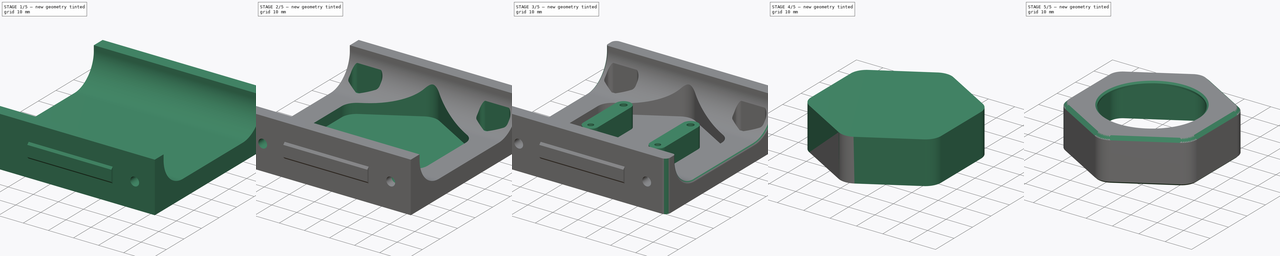
[diagram: build sequence overview — one tinted view per stage of 5, left to right]
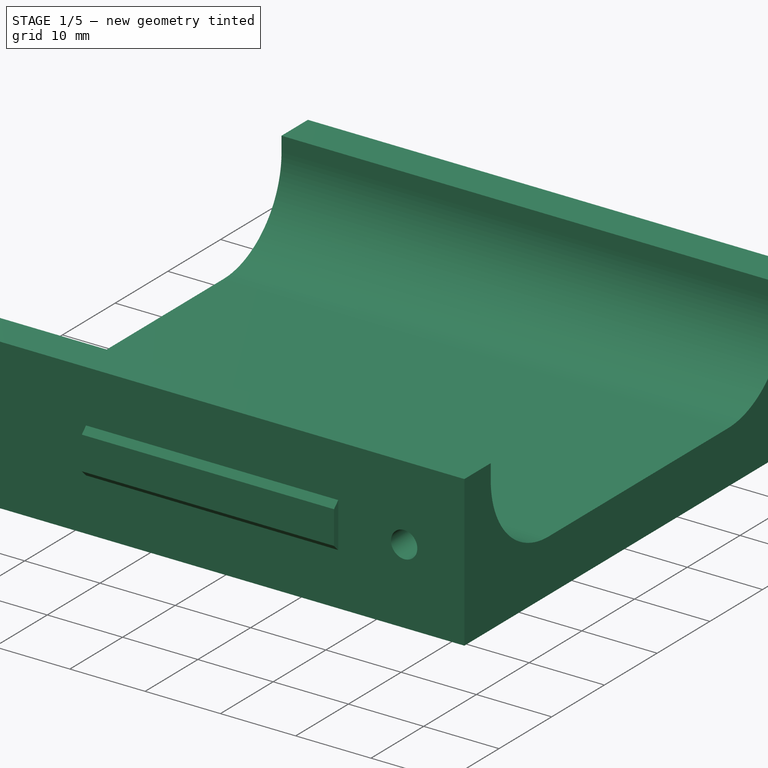
[diagram: stage 1 of 5 — iso view after this stage's code; geometry added in this stage tinted green]
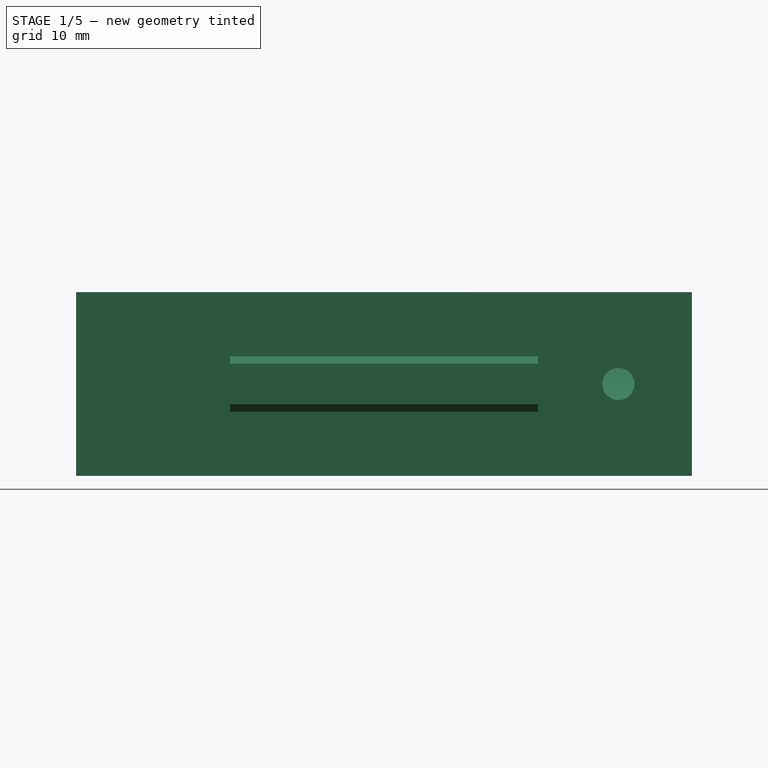
[diagram: stage 1 of 5 — front view after this stage's code; geometry added in this stage tinted green]
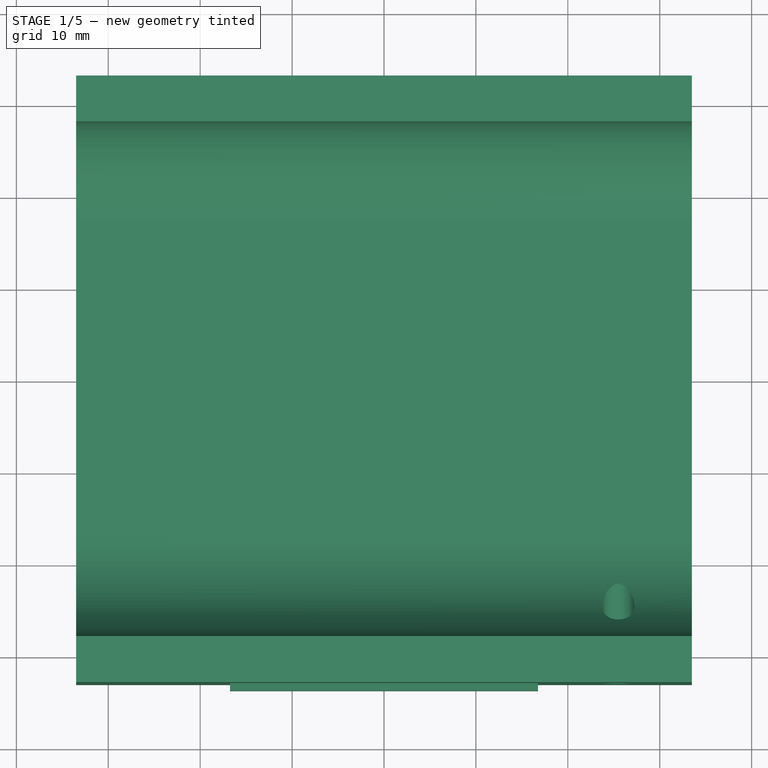
[diagram: stage 1 of 5 — top view after this stage's code; geometry added in this stage tinted green]
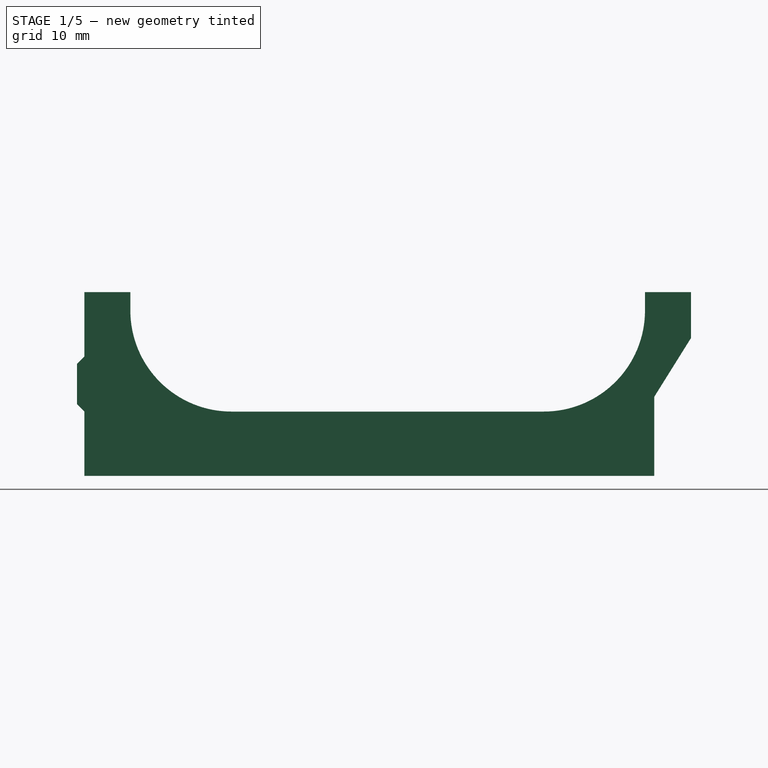
[diagram: stage 1 of 5 — right view after this stage's code; geometry added in this stage tinted green]
FCSTD DOCUMENT  (FreeCAD 0.20R29410 (Git))
Label: Cyclopse MK 1
License: Creative Commons Attribution-NonCommercial-ShareAlike
LicenseURL: http://creativecommons.org/licenses/by-nc-sa/4.0/
objects: Sketcher::SketchObject×14, PartDesign::Pocket×10, PartDesign::Mirrored×5, PartDesign::Pad×4, PartDesign::Chamfer×4, PartDesign::Fillet×3, Part::Feature×2, PartDesign::Body×2, PartDesign::MultiTransform×1, PartDesign::ShapeBinder×1, PartDesign::Thickness×1
note: 69 computed .brp shape members not serialized (recipe doc carries the construction recipe); baked Part::Feature solids carry a one-line shape summary decoded from their .brp

FEATURE [Part::Feature] Part__Feature  label="250 (2)"
  Placement = pos=(-75,85.75,-409.5) rot=(1,0,0;1.5708rad)
  shape: bbox 82 x 66.8 x 20 mm, 145 faces (baked)
FEATURE [Sketcher::SketchObject] Sketch
  FullyConstrained = true
  MapMode = 5
  Support = -> [XY_Plane]
  sketch-geometry (5):
    g0: LineSegment StartX=-33.5 StartY=-33 StartZ=0 EndX=-33.5 EndY=33 EndZ=0
    g1: LineSegment StartX=-33.5 StartY=33 StartZ=0 EndX=33.5 EndY=33 EndZ=0
    g2: LineSegment StartX=33.5 StartY=33 StartZ=0 EndX=33.5 EndY=-33 EndZ=0
    g3: LineSegment StartX=33.5 StartY=-33 StartZ=0 EndX=-33.5 EndY=-33 EndZ=0
    g4: GeomPoint X=0 Y=0 Z=0
  constraints (12):
    c: Coincident(g0,g1)
    c: Coincident(g1,g2)
    c: Coincident(g2,g3)
    c: Coincident(g3,g0)
    c: Horizontal(g1)
    c: Horizontal(g3)
    c: Vertical(g0)
    c: Vertical(g2)
    c: Symmetric(g1,g0,g4)
    c: Coincident(g4,g-1)
    c: DistanceX(g1,g1) = 67  'Width'
    c: DistanceY(g2,g2) = 66  'Height'
FEATURE [PartDesign::Pad] Pad
  Direction = (0,0,1)
  Length = 20
  Length2 = 10
  Profile = -> Sketch
  ReferenceAxis = -> Sketch [N_Axis]
  Reversed = true
  Type = 0
FEATURE [Sketcher::SketchObject] Sketch001
  FullyConstrained = true
  MapMode = 5
  Placement = pos=(0,0,0) rot=(0.57735,0.57735,0.57735;2.0944rad)
  Support = -> [YZ_Plane]
  expr: Constraints[21] = Sketch.Constraints.Height - 10mm
  sketch-geometry (10):
    g0: ArcOfCircle CenterX=-17 CenterY=-2 CenterZ=0 NormalX=0 NormalY=0 NormalZ=1 AngleXU=0 Radius=11 StartAngle=3.14159 EndAngle=4.71239
    g1: LineSegment StartX=-28 StartY=-2 StartZ=0 EndX=-28 EndY=2 EndZ=0
    g2: ArcOfCircle CenterX=-17 CenterY=2 CenterZ=0 NormalX=0 NormalY=0 NormalZ=1 AngleXU=0 Radius=11 StartAngle=1.5708 EndAngle=3.14159
    g3: LineSegment StartX=-17 StartY=13 StartZ=0 EndX=17 EndY=13 EndZ=0
    g4: ArcOfCircle CenterX=17 CenterY=2 CenterZ=0 NormalX=0 NormalY=0 NormalZ=1 AngleXU=0 Radius=11 StartAngle=1e-16 EndAngle=1.5708
    g5: LineSegment StartX=28 StartY=2 StartZ=0 EndX=28 EndY=-2 EndZ=0
    g6: ArcOfCircle CenterX=17 CenterY=-2 CenterZ=0 NormalX=0 NormalY=0 NormalZ=1 AngleXU=0 Radius=11 StartAngle=4.71239 EndAngle=6.28319
    g7: LineSegment StartX=17 StartY=-13 StartZ=0 EndX=-17 EndY=-13 EndZ=0
    g8: GeomPoint X=-28 Y=-13 Z=0
    g9: GeomPoint X=28 Y=13 Z=0
  constraints (23):
    c: Tangent(g0,g1) = 1.5708
    c: Tangent(g1,g2) = 1.5708
    c: Tangent(g2,g3) = 1.5708
    c: Tangent(g3,g4) = 1.5708
    c: Tangent(g4,g5) = 1.5708
    c: Tangent(g5,g6) = 1.5708
    c: Tangent(g6,g7) = 1.5708
    c: Tangent(g7,g0) = 1.5708
    c: Horizontal(g3)
    c: Horizontal(g7)
    c: Vertical(g1)
    c: Vertical(g5)
    c: Equal(g0,g2)
    c: Equal(g2,g4)
    c: Equal(g4,g6)
    c: PointOnObject(g8,g1)
    c: PointOnObject(g8,g7)
    c: PointOnObject(g9,g3)
    c: PointOnObject(g9,g5)
    c: Symmetric(g3,g0,g-1)
    c: Radius(g6) = 11
    c: DistanceX(g1,g4) = 56
    c: DistanceY(g6,g-1) = 13
FEATURE [PartDesign::Pocket] Pocket
  BaseFeature = -> Pad
  Direction = (-1,2e-16,-3e-16)
  Length = 67
  Length2 = 5
  Midplane = true
  Profile = -> Sketch001
  ReferenceAxis = -> Sketch001 [N_Axis]
  Type = 0
  expr: Length = Sketch.Constraints.Width
FEATURE [Sketcher::SketchObject] Sketch002
  FullyConstrained = true
  MapMode = 5
  Placement = pos=(0,0,0) rot=(0.57735,0.57735,0.57735;2.0944rad)
  Support = -> [YZ_Plane]
  expr: Constraints[8] = Sketch.Constraints.Height / 2
  expr: Constraints[9] = Pad.Length
  sketch-geometry (4):
    g0: LineSegment StartX=33 StartY=-20 StartZ=0 EndX=29 EndY=-20 EndZ=0
    g1: LineSegment StartX=29 StartY=-20 StartZ=0 EndX=29 EndY=-11.4 EndZ=0
    g2: LineSegment StartX=29 StartY=-11.4 StartZ=0 EndX=33 EndY=-5 EndZ=0
    g3: LineSegment StartX=33 StartY=-5 StartZ=0 EndX=33 EndY=-20 EndZ=0
  constraints (12):
    c: Horizontal(g0)
    c: Coincident(g0,g1)
    c: Vertical(g1)
    c: Coincident(g1,g2)
    c: Coincident(g2,g3)
    c: Coincident(g3,g0)
    c: Vertical(g3)
    c: DistanceX(g0,g0) = 4
    c: DistanceX(g-1,g0) = 33
    c: DistanceY(g0,g-1) = 20
    c: DistanceY(g3,g3) = 15
    c: DistanceY(g1,g1) = 8.6
FEATURE [PartDesign::Pocket] Pocket001
  BaseFeature = -> Pocket
  Direction = (-1,2e-16,-3e-16)
  Length = 67
  Length2 = 5
  Midplane = true
  Profile = -> Sketch002
  ReferenceAxis = -> Sketch002 [N_Axis]
  Type = 0
  expr: Length = Sketch.Constraints.Width
FEATURE [Sketcher::SketchObject] Sketch003
  FullyConstrained = true
  MapMode = 5
  Placement = pos=(0,0,0) rot=(0.57735,0.57735,0.57735;2.0944rad)
  Support = -> [YZ_Plane]
  expr: Constraints[6] = Sketch.Constraints.Height / 2
  sketch-geometry (5):
    g0: LineSegment StartX=-33 StartY=-7 StartZ=0 EndX=-33.8 EndY=-7.8 EndZ=0
    g1: LineSegment StartX=-33.8 StartY=-7.8 StartZ=0 EndX=-33.8 EndY=-12.2 EndZ=0
    g2: LineSegment StartX=-33.8 StartY=-12.2 StartZ=0 EndX=-33 EndY=-13 EndZ=0
    g3: LineSegment StartX=-33 StartY=-13 StartZ=0 EndX=-33 EndY=-7 EndZ=0
    g4: LineSegment StartX=-33.8 StartY=-10 StartZ=0 EndX=-33 EndY=-10 EndZ=0
  constraints (14):
    c: Coincident(g0,g1)
    c: Vertical(g1)
    c: Coincident(g1,g2)
    c: Coincident(g2,g3)
    c: Coincident(g3,g0)
    c: DistanceY(g0,g-1) = 7
    c: DistanceX(g0,g-1) = 33
    c: Vertical(g3)
    c: DistanceY(g3,g3) = 6
    c: DistanceY(g1,g1) = 4.4
    c: DistanceX(g1,g2) = 0.8
    c: Horizontal(g4)
    c: Symmetric(g1,g0,g4)
    c: Symmetric(g0,g2,g4)
FEATURE [PartDesign::Pad] Pad001
  BaseFeature = -> Pocket001
  Direction = (1,-2e-16,3e-16)
  Length = 33.5
  Length2 = 10
  Midplane = true
  Profile = -> Sketch003
  ReferenceAxis = -> Sketch003 [N_Axis]
  Type = 0
  expr: Length = Sketch.Constraints.Width / 2
FEATURE [Sketcher::SketchObject] Sketch004
  AttachmentOffset = pos=(0,0,33) rot=(0,0,1;0rad)
  FullyConstrained = true
  MapMode = 5
  Placement = pos=(0,-33,7.3e-15) rot=(1,0,0;1.5708rad)
  Support = -> [XZ_Plane]
  expr: .AttachmentOffset.Base.z = Sketch.Constraints.Height / 2
  expr: Constraints[0] = Pad.Length / 2
  expr: Constraints[1] = Sketch.Constraints.Width / 2 - 8mm
  sketch-geometry (1):
    g0: Circle CenterX=25.5 CenterY=-10 CenterZ=0 NormalX=0 NormalY=0 NormalZ=1 AngleXU=0 Radius=1.75
  constraints (3):
    c: DistanceY(g0,g-1) = 10
    c: DistanceX(g-1,g0) = 25.5
    c: Diameter(g0) = 3.5
FEATURE [PartDesign::Pocket] Pocket002
  BaseFeature = -> Pad001
  Direction = (0,1,-2e-16)
  Length = 16
  Length2 = 5
  Profile = -> Sketch004
  ReferenceAxis = -> Sketch004 [N_Axis]
  Type = 0
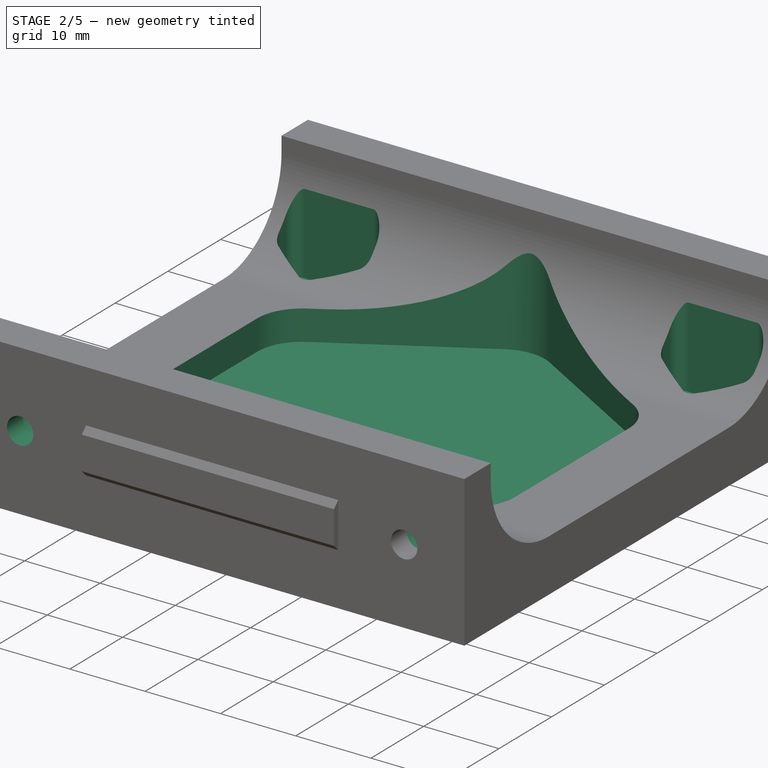
[diagram: stage 2 of 5 — iso view after this stage's code; geometry added in this stage tinted green]
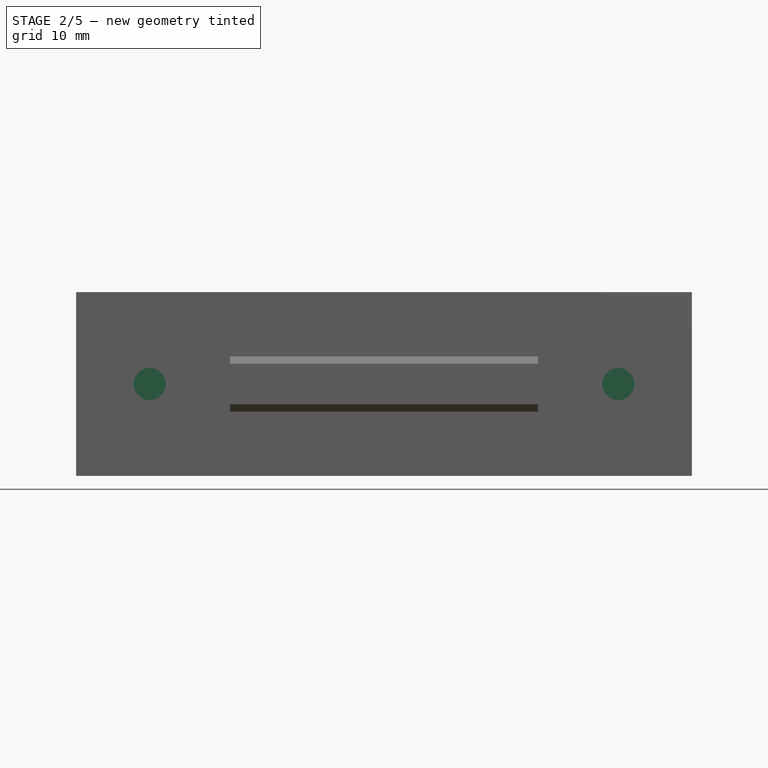
[diagram: stage 2 of 5 — front view after this stage's code; geometry added in this stage tinted green]
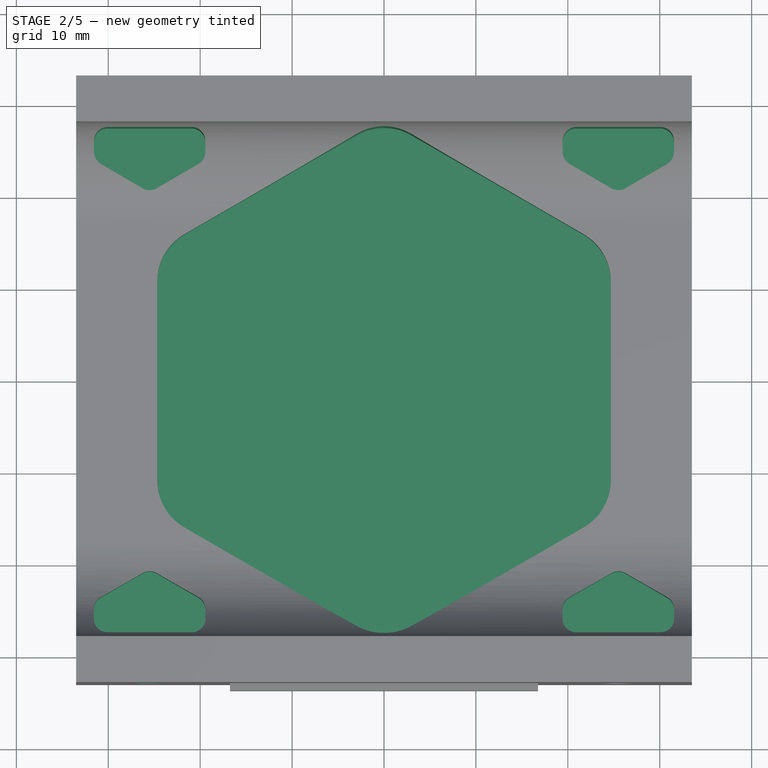
[diagram: stage 2 of 5 — top view after this stage's code; geometry added in this stage tinted green]
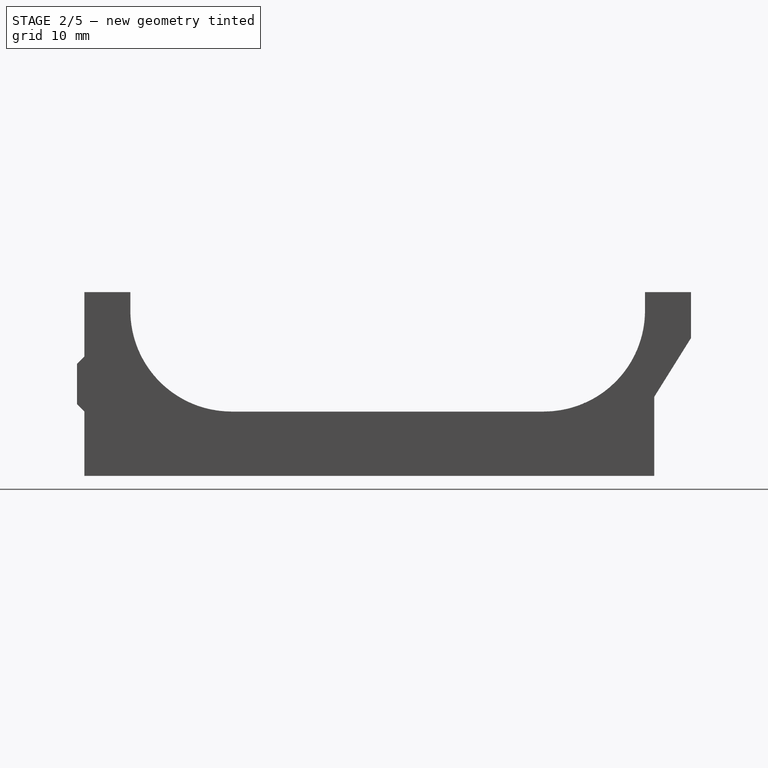
[diagram: stage 2 of 5 — right view after this stage's code; geometry added in this stage tinted green]
FEATURE [Sketcher::SketchObject] Sketch005
  AttachmentOffset = pos=(0,0,30) rot=(0,0,1;0rad)
  FullyConstrained = true
  MapMode = 5
  Placement = pos=(0,-30,6.7e-15) rot=(1,0,0;1.5708rad)
  Support = -> [XZ_Plane]
  expr: .AttachmentOffset.Base.z = Sketch.Constraints.Height / 2 - 3mm
  expr: Constraints[0] = Sketch004.Constraints[0]
  expr: Constraints[1] = Sketch004.Constraints[1]
  sketch-geometry (1):
    g0: Circle CenterX=25.5 CenterY=-10 CenterZ=0 NormalX=0 NormalY=0 NormalZ=1 AngleXU=0 Radius=3
  constraints (3):
    c: DistanceY(g0,g-1) = 10
    c: DistanceX(g-1,g0) = 25.5
    c: Diameter(g0) = 6
FEATURE [PartDesign::Pocket] Pocket003
  BaseFeature = -> Pocket002
  Direction = (0,1,-2e-16)
  Length = 8
  Length2 = 5
  Profile = -> Sketch005
  ReferenceAxis = -> Sketch005 [N_Axis]
  Type = 0
FEATURE [Part::Feature] Part__Feature001  label="0503"
  Placement = pos=(9e-16,0,-7.25) rot=(0.707107,0.707107,0;3.14159rad)
  shape: bbox 37.5 x 40.45 x 9.2 mm, 53 faces (baked)
FEATURE [Sketcher::SketchObject] Sketch006
  FullyConstrained = true
  MapMode = 5
  Support = -> [XY_Plane]
  expr: Constraints[17] = Sketch004.Constraints[1]
  expr: Constraints[40] = Sketch.Constraints.Height / 2 - 5.5mm
  sketch-geometry (24):
    g0: LineSegment StartX=25.5 StartY=-20.5 StartZ=0 EndX=19.4378 EndY=-24 EndZ=0
    g1: LineSegment StartX=19.4378 StartY=-24 StartZ=0 EndX=19.4378 EndY=-31 EndZ=0
    g2: LineSegment StartX=19.4378 StartY=-31 StartZ=0 EndX=25.5 EndY=-34.5 EndZ=0
    g3: LineSegment StartX=25.5 StartY=-34.5 StartZ=0 EndX=31.5622 EndY=-31 EndZ=0
    g4: LineSegment StartX=31.5622 StartY=-31 StartZ=0 EndX=31.5622 EndY=-24 EndZ=0
    g5: LineSegment StartX=31.5622 StartY=-24 StartZ=0 EndX=25.5 EndY=-20.5 EndZ=0
    g6: Circle CenterX=25.5 CenterY=-27.5 CenterZ=0 NormalX=0 NormalY=0 NormalZ=1 AngleXU=0 Radius=7
    g7: LineSegment StartX=24.2487 StartY=14 StartZ=0 EndX=-3.6e-15 EndY=28 EndZ=0
    g8: LineSegment StartX=-3.6e-15 StartY=28 StartZ=0 EndX=-24.2487 EndY=14 EndZ=0
    g9: LineSegment StartX=-24.2487 StartY=14 StartZ=0 EndX=-24.2487 EndY=-14 EndZ=0
    g10: LineSegment StartX=-24.2487 StartY=-14 StartZ=0 EndX=3.6e-15 EndY=-28 EndZ=0
    g11: LineSegment StartX=2.5e-15 StartY=-28 StartZ=0 EndX=24.2487 EndY=-14 EndZ=0
    g12: LineSegment StartX=24.2487 StartY=-14 StartZ=0 EndX=24.2487 EndY=14 EndZ=0
    g13: Circle CenterX=0 CenterY=0 CenterZ=0 NormalX=0 NormalY=0 NormalZ=1 AngleXU=0 Radius=28
    g14: LineSegment StartX=19.4378 StartY=-26 StartZ=0 EndX=19.4378 EndY=-24.866 EndZ=0
    g15: LineSegment StartX=20.1878 StartY=-23.567 StartZ=0 EndX=24.75 EndY=-20.933 EndZ=0
    g16: LineSegment StartX=26.25 StartY=-20.933 StartZ=0 EndX=30.8122 EndY=-23.567 EndZ=0
    g17: LineSegment StartX=30.0622 StartY=-27.5 StartZ=0 EndX=20.9378 EndY=-27.5 EndZ=0
    g18: LineSegment StartX=31.5622 StartY=-24.866 StartZ=0 EndX=31.5622 EndY=-26 EndZ=0
    g19: ArcOfCircle CenterX=20.9378 CenterY=-24.866 CenterZ=0 NormalX=0 NormalY=0 NormalZ=1 AngleXU=0 Radius=1.5 StartAngle=2.0944 EndAngle=3.14159
    g20: ArcOfCircle CenterX=25.5 CenterY=-22.2321 CenterZ=0 NormalX=0 NormalY=0 NormalZ=1 AngleXU=0 Radius=1.5 StartAngle=1.0472 EndAngle=2.0944
    g21: ArcOfCircle CenterX=30.0622 CenterY=-24.866 CenterZ=0 NormalX=0 NormalY=0 NormalZ=1 AngleXU=0 Radius=1.5 StartAngle=7e-16 EndAngle=1.0472
    g22: ArcOfCircle CenterX=20.9378 CenterY=-26 CenterZ=0 NormalX=0 NormalY=0 NormalZ=1 AngleXU=0 Radius=1.5 StartAngle=3.14159 EndAngle=4.71239
    g23: ArcOfCircle CenterX=30.0622 CenterY=-26 CenterZ=0 NormalX=0 NormalY=0 NormalZ=1 AngleXU=0 Radius=1.5 StartAngle=4.71239 EndAngle=6.28319
  constraints (58):
    c: Coincident(g0,g1)
    c: Coincident(g1,g2)
    c: Coincident(g2,g3)
    c: Coincident(g3,g4)
    c: Coincident(g4,g5)
    c: Coincident(g5,g0)
    c: Equal(g0, g1-g5) x5
    c: PointOnObject(g0,g6)
    c: PointOnObject(g1,g6)
    c: PointOnObject(g2,g6)
    c: PointOnObject(g3,g6)
    c: PointOnObject(g4,g6)
    c: PointOnObject(g5,g6)
    c: DistanceX(g-1,g6) = 25.5
    c: Diameter(g6) = 14
    c: Vertical(g4)
    c: Coincident(g7,g8)
    c: Coincident(g8,g9)
    c: Coincident(g9,g10)
    c: Coincident(g10,g11)
    c: Coincident(g11,g12)
    c: Coincident(g12,g7)
    c: Equal(g7, g8-g12) x5
    c: PointOnObject(g7,g13)
    c: PointOnObject(g8,g13)
    c: PointOnObject(g9,g13)
    c: PointOnObject(g10,g13)
    c: PointOnObject(g11,g13)
    c: PointOnObject(g12,g13)
    c: Coincident(g13,g-1)
    c: Vertical(g12)
    c: Diameter(g13) = 56
    c: DistanceY(g6,g13) = 27.5
    c: Horizontal(g17)
    c: Tangent(g14,g19) = 1.5708
    c: Tangent(g15,g19) = 1.5708
    c: Tangent(g15,g20) = 1.5708
    c: Tangent(g16,g20) = 1.5708
    c: Tangent(g16,g21) = 1.5708
    c: Tangent(g18,g21) = 1.5708
    c: Tangent(g14,g22) = 1.5708
    c: Tangent(g17,g22) = 1.5708
    c: Tangent(g17,g23) = 1.5708
    c: Tangent(g18,g23) = 1.5708
    c: Diameter(g23) = 3
    c: PointOnObject(g14,g1)
    c: PointOnObject(g14,g1)
    c: PointOnObject(g15,g0)
    c: PointOnObject(g18,g4)
    c: PointOnObject(g18,g4)
    c: PointOnObject(g16,g5)
    c: PointOnObject(g16,g5)
    c: PointOnObject(g15,g0)
    c: Diameter(g21) = 3
    c: Diameter(g20) = 3
    c: Diameter(g19) = 3
    c: Diameter(g22) = 3
    c: PointOnObject(g6,g17)
FEATURE [PartDesign::Pocket] Pocket004
  BaseFeature = -> Pocket003
  Direction = (0,0,-1)
  Length = 16
  Length2 = 5
  Profile = -> Sketch006
  ReferenceAxis = -> Sketch006 [N_Axis]
  Type = 0
FEATURE [PartDesign::Mirrored] Mirrored
  BaseFeature = -> Pocket004
  MirrorPlane = -> YZ_Plane
  Originals = -> [Pocket002,Pocket003]
FEATURE [PartDesign::Mirrored] Mirrored001
  MirrorPlane = -> Sketch006 [V_Axis]
FEATURE [PartDesign::Mirrored] Mirrored002
  MirrorPlane = -> Sketch006 [H_Axis]
FEATURE [PartDesign::MultiTransform] MultiTransform
  BaseFeature = -> Mirrored
  Originals = -> [Pocket004]
  Transformations = -> [Mirrored001,Mirrored002]
FEATURE [Sketcher::SketchObject] Sketch007
  FullyConstrained = true
  MapMode = 5
  Support = -> [XY_Plane]
  sketch-geometry (19):
    g0: LineSegment StartX=0 StartY=28.5 StartZ=0 EndX=-24.6817 EndY=14.25 EndZ=0
    g1: LineSegment StartX=-24.6817 StartY=14.25 StartZ=0 EndX=-24.6817 EndY=-14.25 EndZ=0
    g2: LineSegment StartX=-24.6817 StartY=-14.25 StartZ=0 EndX=-1.8261e-12 EndY=-28.5 EndZ=0
    g3: LineSegment StartX=-1.8261e-12 StartY=-28.5 StartZ=0 EndX=24.6817 EndY=-14.25 EndZ=0
    g4: LineSegment StartX=24.6817 StartY=-14.25 StartZ=0 EndX=24.6817 EndY=14.25 EndZ=0
    g5: LineSegment StartX=24.6817 StartY=14.25 StartZ=0 EndX=0 EndY=28.5 EndZ=0
    g6: Circle CenterX=0 CenterY=-1e-16 CenterZ=0 NormalX=0 NormalY=0 NormalZ=1 AngleXU=0 Radius=28.5
    g7: LineSegment StartX=-21.6817 StartY=15.9821 StartZ=0 EndX=-3 EndY=26.7679 EndZ=0
    g8: LineSegment StartX=3 StartY=26.7679 StartZ=0 EndX=21.6817 EndY=15.9821 EndZ=0
    g9: LineSegment StartX=24.6817 StartY=10.7859 StartZ=0 EndX=24.6817 EndY=-10.7859 EndZ=0
    g10: LineSegment StartX=21.6817 StartY=-15.9821 StartZ=0 EndX=3 EndY=-26.7679 EndZ=0
    g11: LineSegment StartX=-3 StartY=-26.7679 StartZ=0 EndX=-21.6817 EndY=-15.9821 EndZ=0
    g12: LineSegment StartX=-24.6817 StartY=-10.7859 StartZ=0 EndX=-24.6817 EndY=10.7859 EndZ=0
    g13: ArcOfCircle CenterX=-1.6588e-12 CenterY=21.5718 CenterZ=0 NormalX=0 NormalY=0 NormalZ=1 AngleXU=0 Radius=6 StartAngle=1.0472 EndAngle=2.0944
    g14: ArcOfCircle CenterX=18.6817 CenterY=10.7859 CenterZ=0 NormalX=0 NormalY=0 NormalZ=1 AngleXU=0 Radius=6 StartAngle=-5.151e-13 EndAngle=1.0472
    g15: ArcOfCircle CenterX=18.6817 CenterY=-10.7859 CenterZ=0 NormalX=0 NormalY=0 NormalZ=1 AngleXU=0 Radius=6 StartAngle=5.23599 EndAngle=6.28319
    g16: ArcOfCircle CenterX=-1.3377e-12 CenterY=-21.5718 CenterZ=0 NormalX=0 NormalY=0 NormalZ=1 AngleXU=0 Radius=6 StartAngle=4.18879 EndAngle=5.23599
    g17: ArcOfCircle CenterX=-18.6817 CenterY=-10.7859 CenterZ=0 NormalX=0 NormalY=0 NormalZ=1 AngleXU=0 Radius=6 StartAngle=3.14159 EndAngle=4.18879
    g18: ArcOfCircle CenterX=-18.6817 CenterY=10.7859 CenterZ=0 NormalX=0 NormalY=0 NormalZ=1 AngleXU=0 Radius=6 StartAngle=2.0944 EndAngle=3.14159
  constraints (46):
    c: Coincident(g0,g1)
    c: Coincident(g1,g2)
    c: Coincident(g2,g3)
    c: Coincident(g3,g4)
    c: Coincident(g4,g5)
    c: Coincident(g5,g0)
    c: Equal(g0, g1-g5) x5
    c: PointOnObject(g0,g6)
    c: PointOnObject(g1,g6)
    c: PointOnObject(g2,g6)
    c: PointOnObject(g3,g6)
    c: PointOnObject(g4,g6)
    c: PointOnObject(g5,g6)
    c: Coincident(g6,g-1)
    c: PointOnObject(g5,g-2)
    c: Diameter(g6) = 57
    c: Tangent(g7,g13) = 1.5708
    c: Tangent(g8,g13) = 1.5708
    c: Tangent(g8,g14) = 1.5708
    c: Tangent(g9,g14) = 1.5708
    c: Tangent(g9,g15) = 1.5708
    c: Tangent(g10,g15) = 1.5708
    c: Tangent(g10,g16) = 1.5708
    c: Tangent(g11,g16) = 1.5708
    c: Tangent(g11,g17) = 1.5708
    c: Tangent(g12,g17) = 1.5708
    c: Tangent(g12,g18) = 1.5708
    c: Tangent(g7,g18) = 1.5708
    c: PointOnObject(g7,g0)
    c: PointOnObject(g7,g0)
    c: PointOnObject(g8,g5)
    c: PointOnObject(g8,g5)
    c: PointOnObject(g9,g4)
    c: PointOnObject(g9,g4)
    c: PointOnObject(g10,g3)
    c: PointOnObject(g10,g3)
    c: PointOnObject(g11,g2)
    c: PointOnObject(g11,g2)
    c: PointOnObject(g12,g1)
    c: PointOnObject(g12,g1)
    c: Radius(g13) = 6
    c: Radius(g14) = 6
    c: Radius(g15) = 6  'HexRad'
    c: Radius(g16) = 6
    c: Radius(g17) = 6
    c: Radius(g18) = 6
FEATURE [PartDesign::Pocket] Pocket005
  BaseFeature = -> MultiTransform
  Direction = (0,0,-1)
  Length = 17
  Length2 = 5
  Profile = -> Sketch007
  ReferenceAxis = -> Sketch007 [N_Axis]
  Type = 0
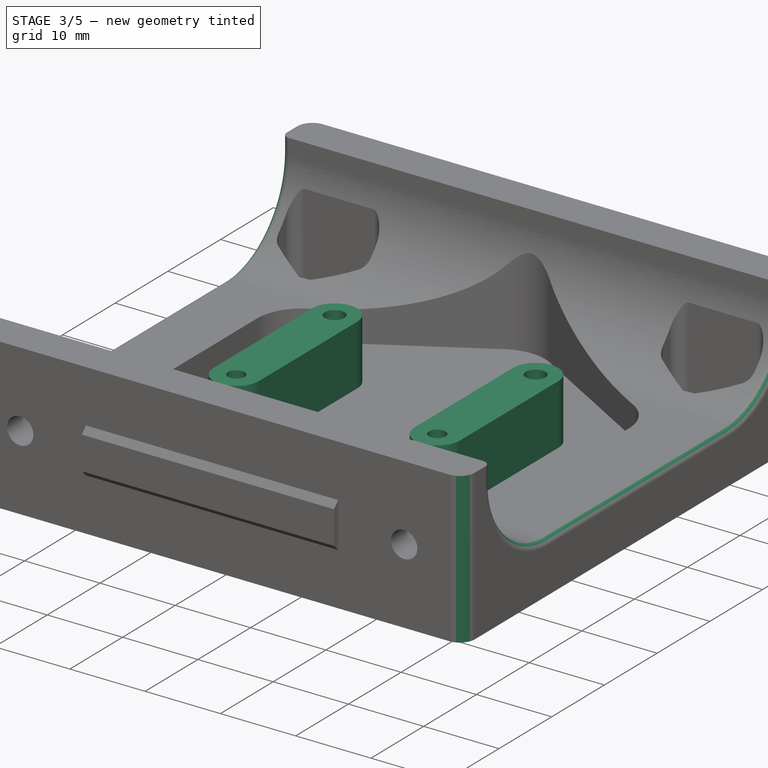
[diagram: stage 3 of 5 — iso view after this stage's code; geometry added in this stage tinted green]
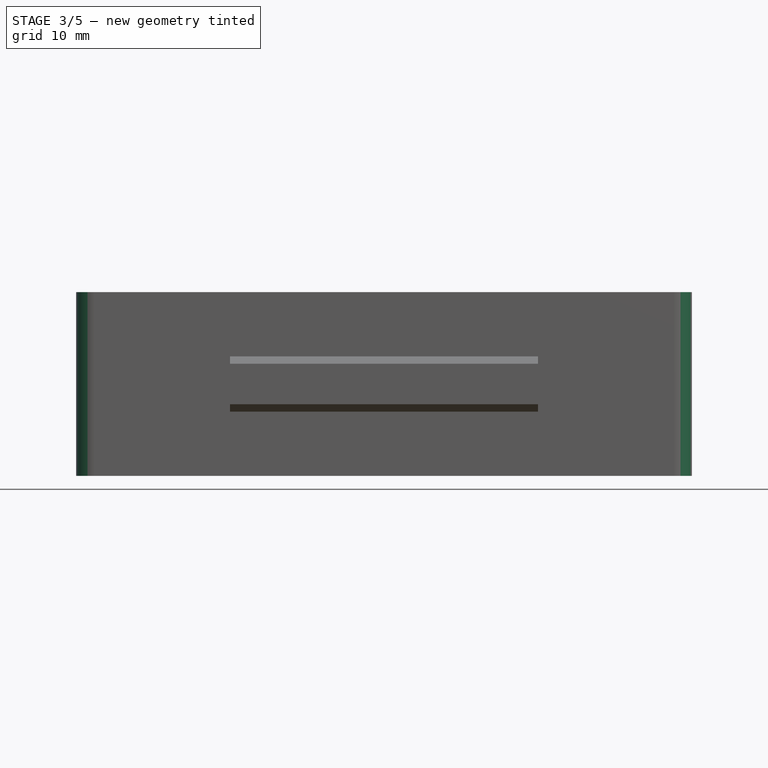
[diagram: stage 3 of 5 — front view after this stage's code; geometry added in this stage tinted green]
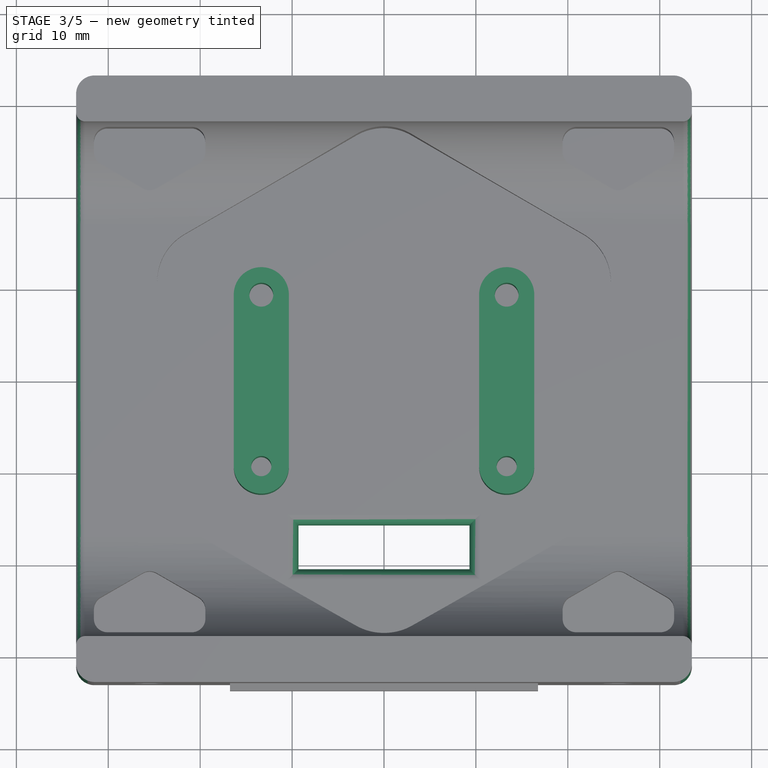
[diagram: stage 3 of 5 — top view after this stage's code; geometry added in this stage tinted green]
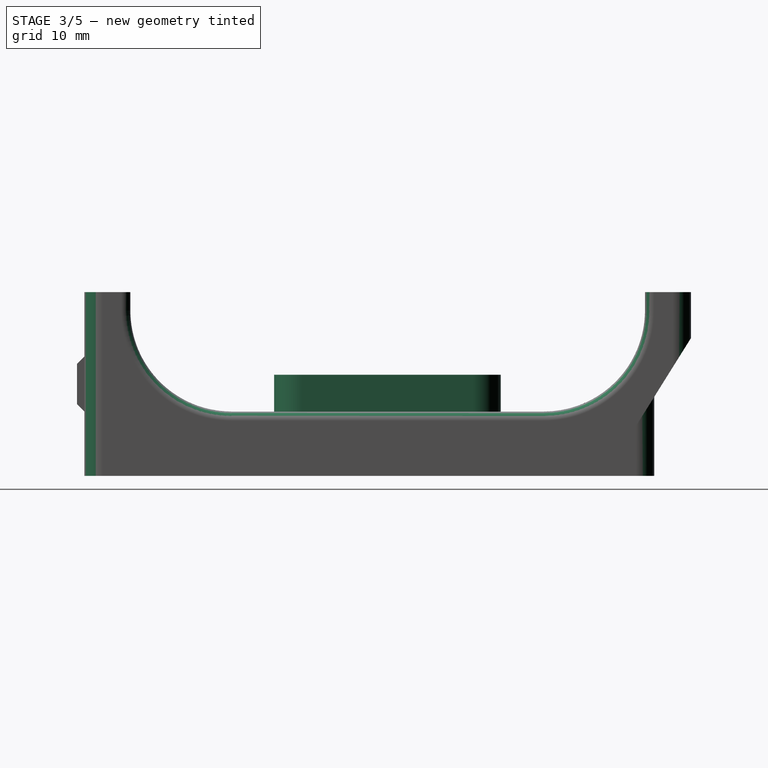
[diagram: stage 3 of 5 — right view after this stage's code; geometry added in this stage tinted green]
FEATURE [Sketcher::SketchObject] Sketch008
  AttachmentOffset = pos=(0,0,-17) rot=(0,0,1;0rad)
  FullyConstrained = true
  MapMode = 5
  Placement = pos=(0,0,-17) rot=(0,0,1;0rad)
  Support = -> [XY_Plane]
  sketch-geometry (6):
    g0: ArcOfCircle CenterX=13.35 CenterY=9.3 CenterZ=0 NormalX=0 NormalY=0 NormalZ=1 AngleXU=0 Radius=3 StartAngle=0 EndAngle=3.14159
    g1: ArcOfCircle CenterX=13.35 CenterY=-9.35 CenterZ=0 NormalX=0 NormalY=0 NormalZ=1 AngleXU=0 Radius=3 StartAngle=3.14159 EndAngle=6.28319
    g2: LineSegment StartX=10.35 StartY=9.3 StartZ=0 EndX=10.35 EndY=-9.35 EndZ=0
    g3: LineSegment StartX=16.35 StartY=-9.35 StartZ=0 EndX=16.35 EndY=9.3 EndZ=0
    g4: Circle CenterX=13.35 CenterY=9.3 CenterZ=0 NormalX=0 NormalY=0 NormalZ=1 AngleXU=0 Radius=1.3
    g5: Circle CenterX=13.35 CenterY=-9.35 CenterZ=0 NormalX=0 NormalY=0 NormalZ=1 AngleXU=0 Radius=1.1
  constraints (14):
    c: Tangent(g0,g2) = -1.5708
    c: Tangent(g2,g1) = -1.5708
    c: Tangent(g1,g3) = -1.5708
    c: Tangent(g3,g0) = -1.5708
    c: Equal(g0,g1)
    c: Vertical(g2)
    c: Radius(g0) = 3
    c: DistanceX(g0) = 13.35  'lcdBoltX'
    c: DistanceY(g0) = 9.3  'lcdBoltY1'
    c: DistanceY(g1) = -9.35  'lcdBoltY2'
    c: Coincident(g4,g0)
    c: Diameter(g4) = 2.6
    c: Coincident(g5,g1)
    c: Diameter(g5) = 2.2
FEATURE [PartDesign::Pad] Pad002
  BaseFeature = -> Pocket005
  Direction = (0,0,1)
  Length = 8
  Length2 = 10
  Profile = -> Sketch008
  ReferenceAxis = -> Sketch008 [N_Axis]
  Type = 0
FEATURE [PartDesign::Mirrored] Mirrored003
  BaseFeature = -> Pad002
  MirrorPlane = -> Sketch008 [V_Axis]
  Originals = -> [Pad002]
FEATURE [Sketcher::SketchObject] Sketch009
  FullyConstrained = false
  MapMode = 5
  Support = -> [XY_Plane]
  sketch-geometry (5):
    g0: LineSegment StartX=9.3 StartY=-15.6178 StartZ=0 EndX=9.3 EndY=-20.4178 EndZ=0
    g1: LineSegment StartX=9.3 StartY=-20.4178 StartZ=0 EndX=-9.3 EndY=-20.4178 EndZ=0
    g2: LineSegment StartX=-9.3 StartY=-20.4178 StartZ=0 EndX=-9.3 EndY=-15.6178 EndZ=0
    g3: LineSegment StartX=-9.3 StartY=-15.6178 StartZ=0 EndX=9.3 EndY=-15.6178 EndZ=0
    g4: GeomPoint X=0 Y=-18.0178 Z=0
  constraints (12):
    c: Coincident(g0,g1)
    c: Coincident(g1,g2)
    c: Coincident(g2,g3)
    c: Coincident(g3,g0)
    c: Horizontal(g1)
    c: Horizontal(g3)
    c: Vertical(g0)
    c: Vertical(g2)
    c: Symmetric(g1,g0,g4)
    c: PointOnObject(g4,g-2)
    c: DistanceX(g1,g1) = 18.6
    c: DistanceY(g2,g2) = 4.8
FEATURE [PartDesign::Pocket] Pocket006
  BaseFeature = -> Mirrored003
  Direction = (0,0,-1)
  Length = 20
  Length2 = 5
  Profile = -> Sketch009
  ReferenceAxis = -> Sketch009 [N_Axis]
  Type = 0
  expr: Length = Pad.Length
FEATURE [PartDesign::Fillet] Fillet
  Base = -> Pocket006 [Edge99,Edge4]
  BaseFeature = -> Pocket006
  Radius = 1
  SupportTransform = false
  UseAllEdges = false
FEATURE [PartDesign::Fillet] Fillet001
  Base = -> Fillet [Edge7,Edge39,Edge20,Edge3,Edge47,Edge11]
  BaseFeature = -> Fillet
  Radius = 2
  SupportTransform = false
  UseAllEdges = false
FEATURE [PartDesign::Fillet] Fillet002
  Base = -> Fillet001 [Edge78,Edge83,Edge85,Edge81]
  BaseFeature = -> Fillet001
  Radius = 1.2
  SupportTransform = false
  UseAllEdges = false
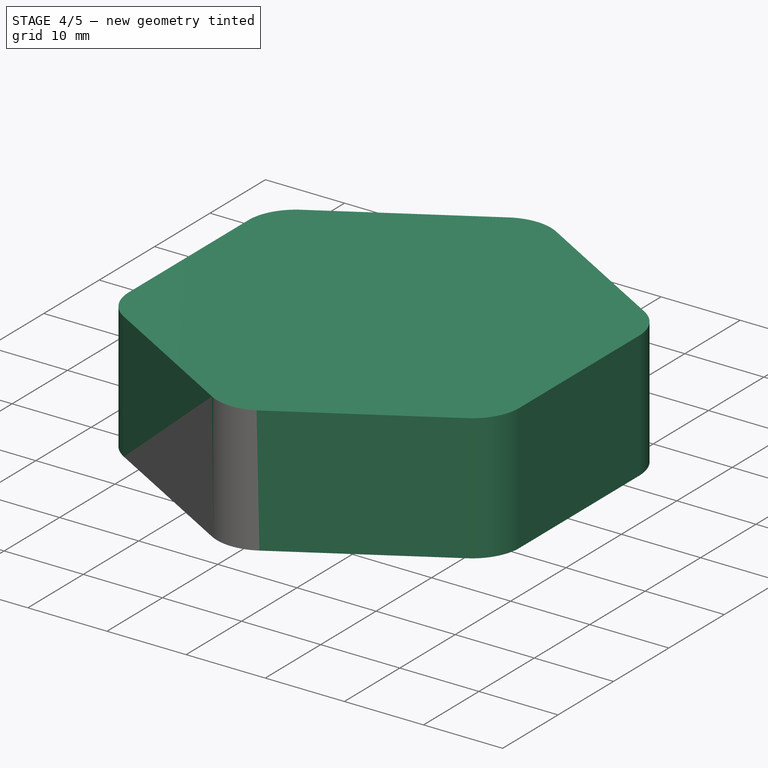
[diagram: stage 4 of 5 — iso view after this stage's code; geometry added in this stage tinted green]
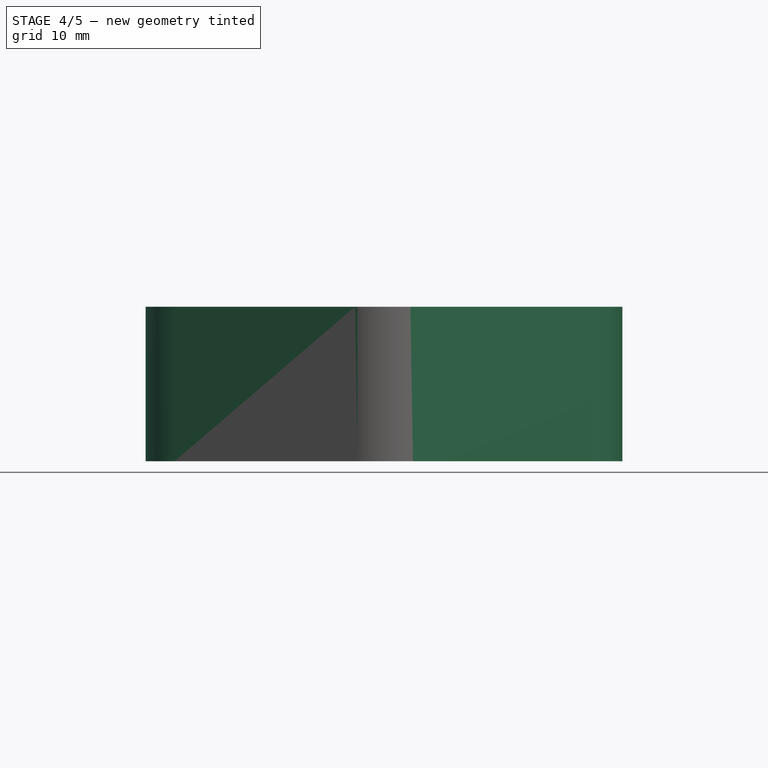
[diagram: stage 4 of 5 — front view after this stage's code; geometry added in this stage tinted green]
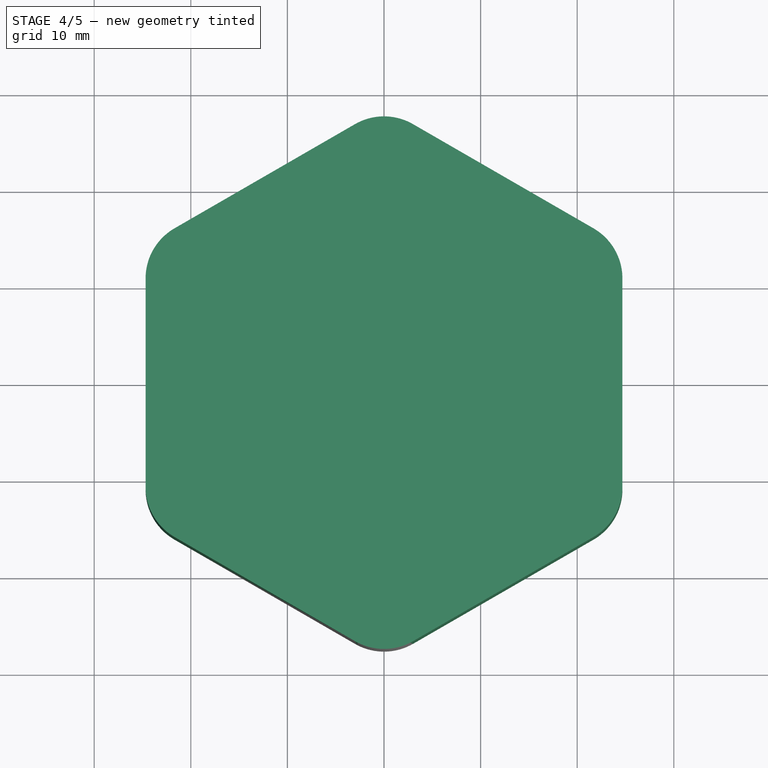
[diagram: stage 4 of 5 — top view after this stage's code; geometry added in this stage tinted green]
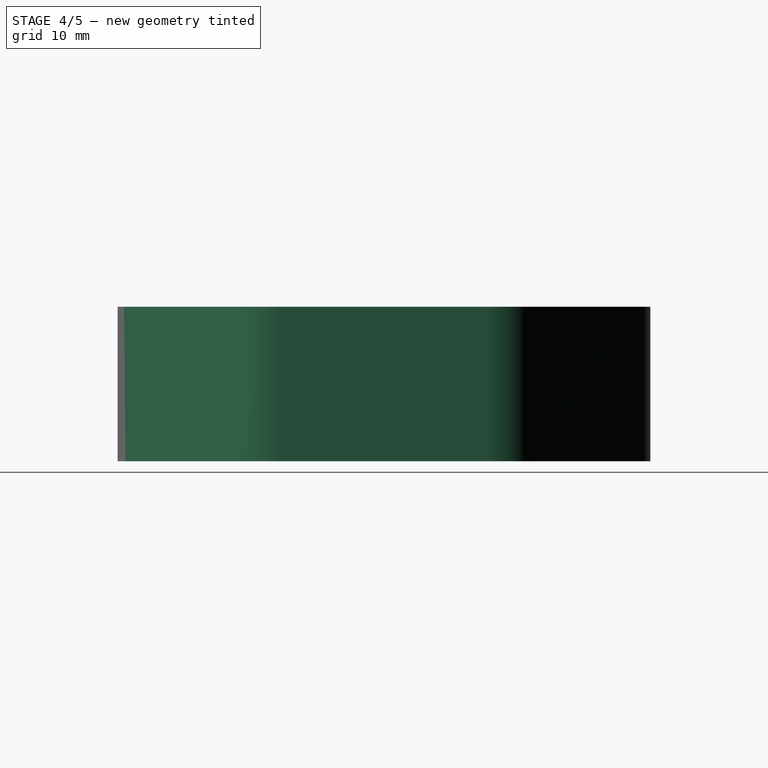
[diagram: stage 4 of 5 — right view after this stage's code; geometry added in this stage tinted green]
FEATURE [PartDesign::Chamfer] Chamfer
  Angle = 45
  Base = -> Fillet002 [Edge41,Edge47]
  BaseFeature = -> Fillet002
  ChamferType = 0
  FlipDirection = false
  Size = 1.2
  Size2 = 1
  SupportTransform = false
  UseAllEdges = false
FEATURE [Sketcher::SketchObject] Sketch010
  AttachmentOffset = pos=(0,0,-20) rot=(0,0,1;0rad)
  FullyConstrained = true
  MapMode = 5
  Placement = pos=(0,0,-20) rot=(0,0,1;0rad)
  Support = -> [XY_Plane]
  expr: .AttachmentOffset.Base.z = Pad.Length * -1
  expr: Constraints[0] = Sketch008.Constraints.lcdBoltX
  expr: Constraints[1] = Sketch008.Constraints.lcdBoltX
  expr: Constraints[2] = abs(Sketch008.Constraints.lcdBoltY2)
  expr: Constraints[3] = Sketch008.Constraints.lcdBoltY1
  sketch-geometry (2):
    g0: Circle CenterX=13.35 CenterY=9.3 CenterZ=0 NormalX=0 NormalY=0 NormalZ=1 AngleXU=0 Radius=2.2
    g1: Circle CenterX=13.35 CenterY=-9.35 CenterZ=0 NormalX=0 NormalY=0 NormalZ=1 AngleXU=0 Radius=2.2
  constraints (6):
    c: DistanceX(g-1,g0) = 13.35
    c: DistanceX(g-1,g1) = 13.35
    c: DistanceY(g1,g-1) = 9.35
    c: DistanceY(g-1,g0) = 9.3
    c: Diameter(g1) = 4.4
    c: Equal(g1,g0)
FEATURE [PartDesign::Pocket] Pocket007
  BaseFeature = -> Chamfer
  Direction = (0,0,-1)
  Length = 3
  Length2 = 5
  Profile = -> Sketch010
  ReferenceAxis = -> Sketch010 [N_Axis]
  Reversed = true
  Type = 0
FEATURE [Sketcher::SketchObject] Sketch011
  AttachmentOffset = pos=(0,0,-17) rot=(0,0,1;0rad)
  FullyConstrained = true
  MapMode = 5
  Placement = pos=(0,0,-17) rot=(0,0,1;0rad)
  Support = -> [XY_Plane]
  expr: .AttachmentOffset.Base.z = (Pad.Length - Pocket007.Length) * -1
  expr: Constraints[0] = Sketch010.Constraints[0]
  expr: Constraints[1] = Sketch010.Constraints[1]
  expr: Constraints[2] = Sketch010.Constraints[2]
  expr: Constraints[3] = Sketch010.Constraints[3]
  expr: Constraints[4] = Sketch010.Constraints[4]
  sketch-geometry (10):
    g0: ArcOfCircle CenterX=13.35 CenterY=9.3 CenterZ=0 NormalX=0 NormalY=0 NormalZ=1 AngleXU=0 Radius=2.2 StartAngle=1.0472 EndAngle=2.0944
    g1: ArcOfCircle CenterX=13.35 CenterY=-9.35 CenterZ=0 NormalX=0 NormalY=0 NormalZ=1 AngleXU=0 Radius=2.2 StartAngle=1.0472 EndAngle=2.0944
    g2: Circle CenterX=13.35 CenterY=-9.35 CenterZ=0 NormalX=0 NormalY=0 NormalZ=1 AngleXU=0 Radius=1.1
    g3: LineSegment StartX=12.25 StartY=-11.2553 StartZ=0 EndX=12.25 EndY=-7.44474 EndZ=0
    g4: LineSegment StartX=14.45 StartY=-11.2553 StartZ=0 EndX=14.45 EndY=-7.44474 EndZ=0
    g5: ArcOfCircle CenterX=13.35 CenterY=-9.35 CenterZ=0 NormalX=0 NormalY=0 NormalZ=1 AngleXU=0 Radius=2.2 StartAngle=4.18879 EndAngle=5.23599
    g6: Circle CenterX=13.35 CenterY=9.3 CenterZ=0 NormalX=0 NormalY=0 NormalZ=1 AngleXU=0 Radius=1.1
    g7: LineSegment StartX=12.25 StartY=11.2053 StartZ=0 EndX=12.25 EndY=7.39474 EndZ=0
    g8: LineSegment StartX=14.45 StartY=11.2053 StartZ=0 EndX=14.45 EndY=7.39474 EndZ=0
    g9: ArcOfCircle CenterX=13.35 CenterY=9.3 CenterZ=0 NormalX=0 NormalY=0 NormalZ=1 AngleXU=0 Radius=2.2 StartAngle=4.18879 EndAngle=5.23599
  constraints (30):
    c: DistanceX(g-1,g0) = 13.35
    c: DistanceX(g-1,g1) = 13.35
    c: DistanceY(g1,g-1) = 9.35
    c: DistanceY(g-1,g0) = 9.3
    c: Diameter(g1) = 4.4
    c: Equal(g1,g0)
    c: Coincident(g2,g1)
    c: Diameter(g2) = 2.2
    c: Vertical(g3)
    c: Vertical(g4)
    c: Tangent(g2,g4)
    c: Tangent(g3,g2)
    c: Coincident(g5,g4)
    c: Coincident(g1,g4)
    c: Equal(g1,g5)
    c: Coincident(g1,g3)
    c: Coincident(g5,g3)
    c: Coincident(g1,g5)
    c: Coincident(g6,g0)
    c: Diameter(g6) = 2.2
    c: Vertical(g7)
    c: Vertical(g8)
    c: Tangent(g8,g6)
    c: Tangent(g7,g6)
    c: Coincident(g9,g8)
    c: Coincident(g0,g8)
    c: Equal(g0,g9)
    c: Coincident(g0,g7)
    c: Coincident(g9,g7)
    c: Coincident(g0,g9)
FEATURE [PartDesign::Pocket] Pocket008
  BaseFeature = -> Pocket007
  Direction = (0,0,-1)
  Length = 0.2
  Length2 = 5
  Profile = -> Sketch011
  ReferenceAxis = -> Sketch011 [N_Axis]
  Reversed = true
  Type = 0
FEATURE [PartDesign::Mirrored] Mirrored004
  BaseFeature = -> Pocket008
  MirrorPlane = -> Sketch010 [V_Axis]
  Originals = -> [Pocket007,Pocket008]
FEATURE [PartDesign::Body] Body
  Group = -> [Sketch,Pad,Sketch001,Pocket,Sketch002,Pocket001,Sketch003,Pad001,Sketch004,Pocket002,Sketch005,Pocket003,Sketch006,Pocket004,Mirrored,MultiTransform,Mirrored001,Mirrored002,Sketch007,Pocket005,Sketch008,Pad002,Mirrored003,Sketch009,Pocket006,Fillet,Fillet001,Fillet002,Chamfer,Sketch010,Pocket007,Sketch011,Pocket008,Mirrored004]
  Origin = -> Origin
  Tip = -> Mirrored004
FEATURE [PartDesign::ShapeBinder] ShapeBinder
  Support = -> [Mirrored004]
  TraceSupport = false
FEATURE [Sketcher::SketchObject] Sketch012
  FullyConstrained = true
  MapMode = 5
  Placement = pos=(0,0,-17) rot=(0,0,1;0rad)
  Support = -> [ShapeBinder]
  sketch-geometry (19):
    g0: LineSegment StartX=24.6817 StartY=-14.25 StartZ=0 EndX=24.6817 EndY=14.25 EndZ=0
    g1: LineSegment StartX=24.6817 StartY=14.25 StartZ=0 EndX=0 EndY=28.5 EndZ=0
    g2: LineSegment StartX=0 StartY=28.5 StartZ=0 EndX=-24.6817 EndY=14.25 EndZ=0
    g3: LineSegment StartX=-24.6817 StartY=14.25 StartZ=0 EndX=-24.6817 EndY=-14.25 EndZ=0
    g4: LineSegment StartX=-24.6817 StartY=-14.25 StartZ=0 EndX=0 EndY=-28.5 EndZ=0
    g5: LineSegment StartX=0 StartY=-28.5 StartZ=0 EndX=24.6817 EndY=-14.25 EndZ=0
    g6: Circle CenterX=0 CenterY=0 CenterZ=0 NormalX=0 NormalY=0 NormalZ=1 AngleXU=0 Radius=28.5
    g7: LineSegment StartX=-24.6817 StartY=-10.7859 StartZ=0 EndX=-24.6817 EndY=10.7859 EndZ=0
    g8: LineSegment StartX=-21.6817 StartY=15.9821 StartZ=0 EndX=-3 EndY=26.7679 EndZ=0
    g9: LineSegment StartX=3 StartY=26.7679 StartZ=0 EndX=21.6817 EndY=15.9821 EndZ=0
    g10: LineSegment StartX=24.6817 StartY=10.7859 StartZ=0 EndX=24.6817 EndY=-10.7859 EndZ=0
    g11: LineSegment StartX=21.6817 StartY=-15.9821 StartZ=0 EndX=3 EndY=-26.7679 EndZ=0
    g12: LineSegment StartX=-3 StartY=-26.7679 StartZ=0 EndX=-21.6817 EndY=-15.9821 EndZ=0
    g13: ArcOfCircle CenterX=-18.6817 CenterY=10.7859 CenterZ=0 NormalX=0 NormalY=0 NormalZ=1 AngleXU=0 Radius=6 StartAngle=2.0944 EndAngle=3.14159
    g14: ArcOfCircle CenterX=2.07e-14 CenterY=21.5718 CenterZ=0 NormalX=0 NormalY=0 NormalZ=1 AngleXU=0 Radius=6 StartAngle=1.0472 EndAngle=2.0944
    g15: ArcOfCircle CenterX=18.6817 CenterY=10.7859 CenterZ=0 NormalX=0 NormalY=0 NormalZ=1 AngleXU=0 Radius=6 StartAngle=0 EndAngle=1.0472
    g16: ArcOfCircle CenterX=18.6817 CenterY=-10.7859 CenterZ=0 NormalX=0 NormalY=0 NormalZ=1 AngleXU=0 Radius=6 StartAngle=5.23599 EndAngle=6.28319
    g17: ArcOfCircle CenterX=1.55e-14 CenterY=-21.5718 CenterZ=0 NormalX=0 NormalY=0 NormalZ=1 AngleXU=0 Radius=6 StartAngle=4.18879 EndAngle=5.23599
    g18: ArcOfCircle CenterX=-18.6817 CenterY=-10.7859 CenterZ=0 NormalX=0 NormalY=0 NormalZ=1 AngleXU=0 Radius=6 StartAngle=3.14159 EndAngle=4.18879
  constraints (46):
    c: Coincident(g0,g1)
    c: Coincident(g1,g2)
    c: Coincident(g2,g3)
    c: Coincident(g3,g4)
    c: Coincident(g4,g5)
    c: Coincident(g5,g0)
    c: Equal(g0, g1-g5) x5
    c: PointOnObject(g0,g6)
    c: PointOnObject(g1,g6)
    c: PointOnObject(g2,g6)
    c: PointOnObject(g3,g6)
    c: PointOnObject(g4,g6)
    c: PointOnObject(g5,g6)
    c: Coincident(g6,g-1)
    c: Vertical(g0)
    c: Diameter(g6) = 57
    c: Tangent(g7,g13) = 1.5708
    c: Tangent(g8,g13) = 1.5708
    c: Tangent(g8,g14) = 1.5708
    c: Tangent(g9,g14) = 1.5708
    c: Tangent(g9,g15) = 1.5708
    c: Tangent(g10,g15) = 1.5708
    c: Tangent(g10,g16) = 1.5708
    c: Tangent(g11,g16) = 1.5708
    c: Tangent(g11,g17) = 1.5708
    c: Tangent(g12,g17) = 1.5708
    c: Tangent(g12,g18) = 1.5708
    c: Tangent(g7,g18) = 1.5708
    c: Radius(g14) = 6
    c: Radius(g15) = 6
    c: Radius(g16) = 6
    c: Radius(g17) = 6
    c: Radius(g18) = 6
    c: Radius(g13) = 6
    c: PointOnObject(g8,g2)
    c: PointOnObject(g8,g2)
    c: PointOnObject(g9,g1)
    c: PointOnObject(g9,g1)
    c: PointOnObject(g10,g0)
    c: PointOnObject(g10,g0)
    c: PointOnObject(g11,g5)
    c: PointOnObject(g11,g5)
    c: PointOnObject(g12,g4)
    c: PointOnObject(g12,g4)
    c: PointOnObject(g7,g3)
    c: PointOnObject(g7,g3)
FEATURE [PartDesign::Pad] Pad003
  Direction = (0,0,1)
  Length = 16
  Length2 = 10
  Profile = -> Sketch012
  ReferenceAxis = -> Sketch012 [N_Axis]
  Type = 0
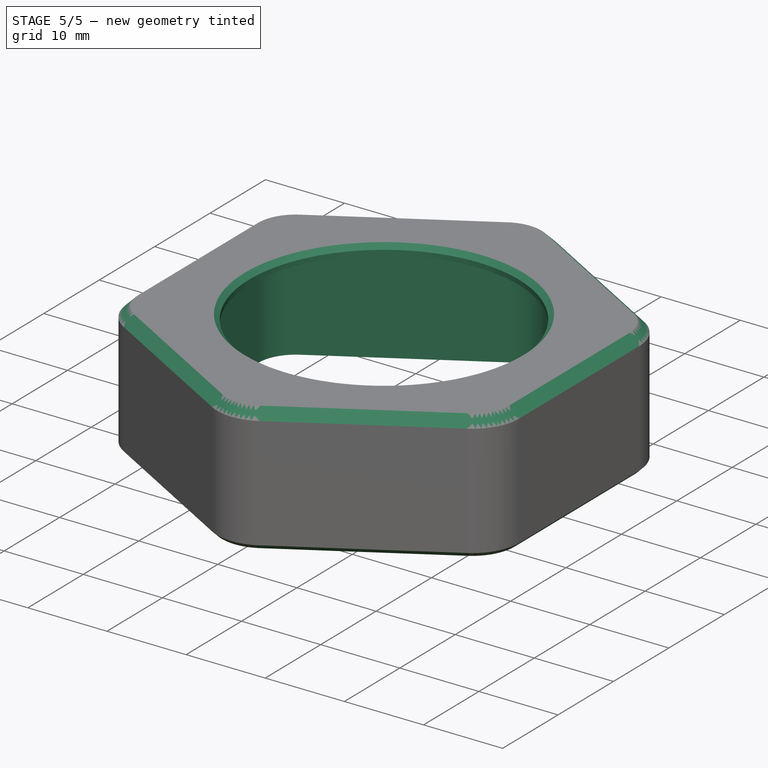
[diagram: stage 5 of 5 — iso view after this stage's code; geometry added in this stage tinted green]
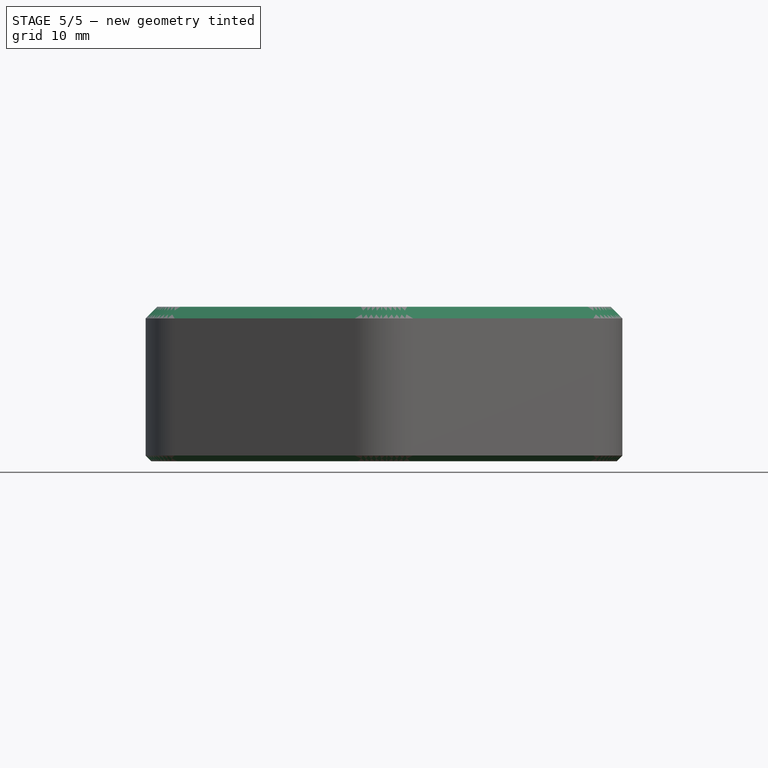
[diagram: stage 5 of 5 — front view after this stage's code; geometry added in this stage tinted green]
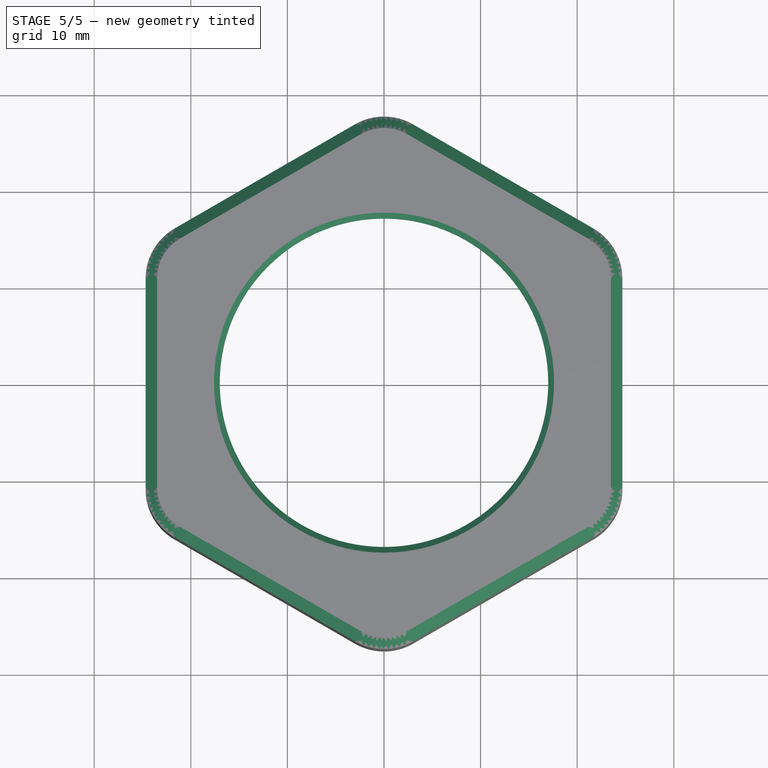
[diagram: stage 5 of 5 — top view after this stage's code; geometry added in this stage tinted green]
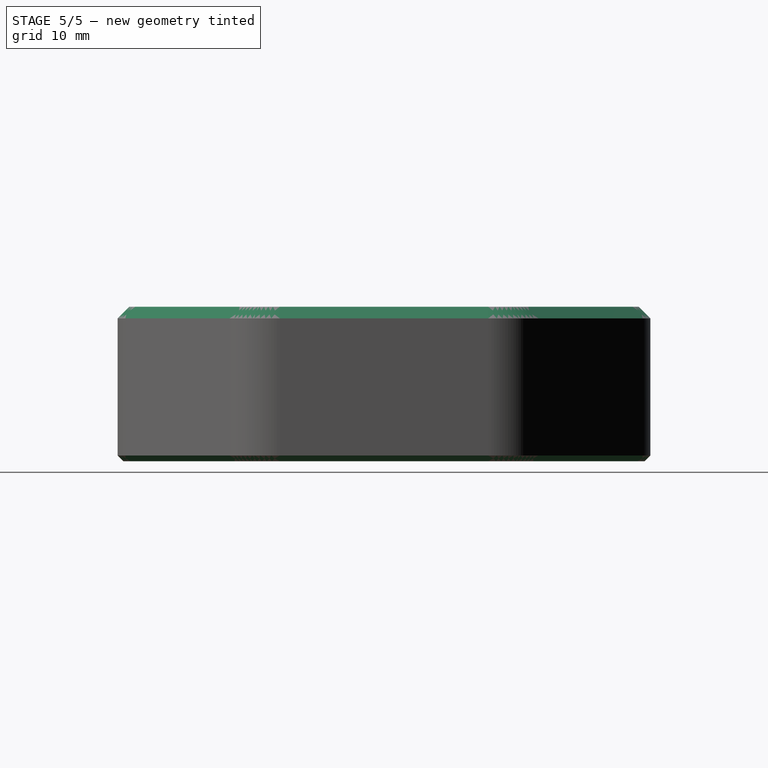
[diagram: stage 5 of 5 — right view after this stage's code; geometry added in this stage tinted green]
FEATURE [PartDesign::Chamfer] Chamfer001
  Angle = 45
  Base = -> Pad003 [Face14]
  BaseFeature = -> Pad003
  ChamferType = 0
  FlipDirection = false
  Size = 1.2
  Size2 = 1
  SupportTransform = false
  UseAllEdges = false
FEATURE [PartDesign::Thickness] Thickness
  Base = -> Chamfer001 [Face4]
  BaseFeature = -> Chamfer001
  Intersection = false
  Join = 0
  Mode = 0
  Reversed = true
  SupportTransform = false
  Value = 1.2
FEATURE [Sketcher::SketchObject] Sketch013
  FullyConstrained = true
  MapMode = 5
  Support = -> [XY_Plane001]
  sketch-geometry (1):
    g0: Circle CenterX=0 CenterY=0 CenterZ=0 NormalX=0 NormalY=0 NormalZ=1 AngleXU=0 Radius=17
  constraints (2):
    c: Coincident(g0,g-1)
    c: Diameter(g0) = 34
FEATURE [PartDesign::Pocket] Pocket009
  BaseFeature = -> Thickness
  Direction = (0,0,-1)
  Length = 5
  Length2 = 5
  Profile = -> Sketch013
  ReferenceAxis = -> Sketch013 [N_Axis]
  Type = 0
FEATURE [PartDesign::Chamfer] Chamfer002
  Angle = 45
  Base = -> Pocket009 [Edge49]
  BaseFeature = -> Pocket009
  ChamferType = 0
  FlipDirection = false
  Size = 0.6
  Size2 = 1
  SupportTransform = false
  UseAllEdges = false
FEATURE [PartDesign::Chamfer] Chamfer003
  Angle = 45
  Base = -> Chamfer002 [Edge59]
  BaseFeature = -> Chamfer002
  ChamferType = 0
  FlipDirection = false
  Size = 0.6
  Size2 = 1
  SupportTransform = false
  UseAllEdges = false
FEATURE [PartDesign::Body] Body001
  Group = -> [ShapeBinder,Sketch012,Pad003,Chamfer001,Thickness,Sketch013,Pocket009,Chamfer002,Chamfer003]
  Origin = -> Origin001
  Tip = -> Chamfer003
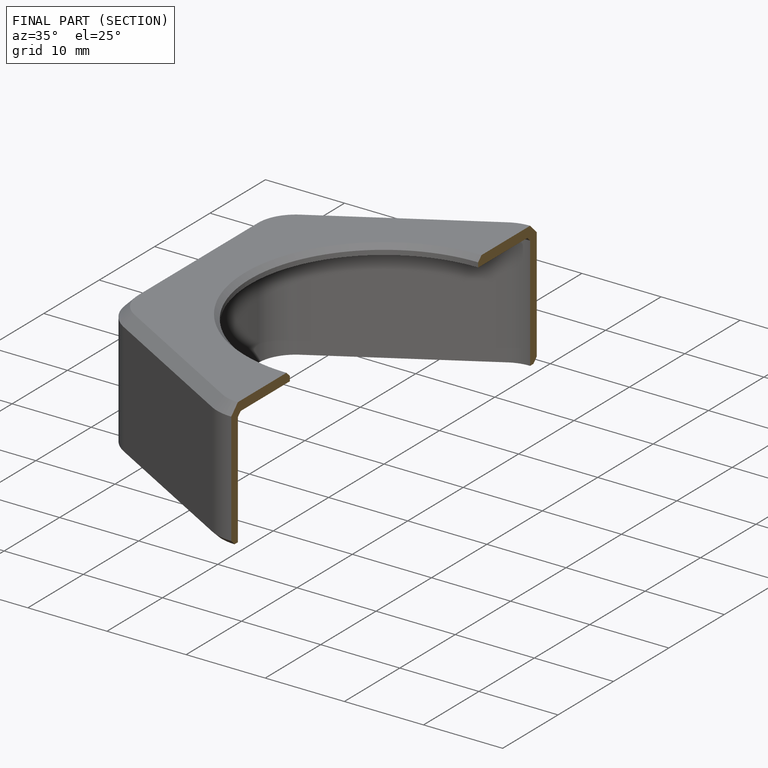
[diagram: finished part — half-section view (interior)]
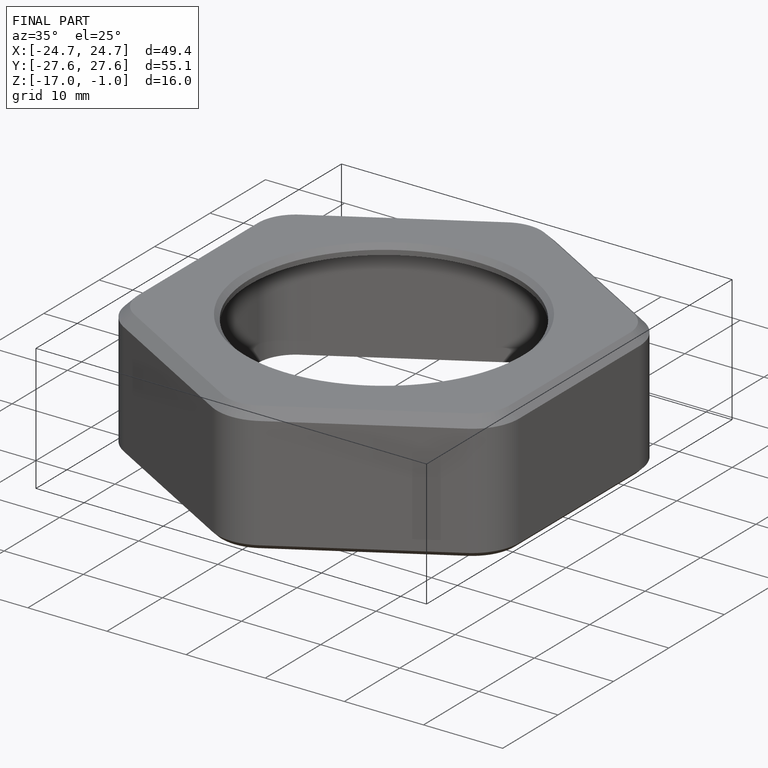
[diagram: finished part — iso view with bounding-box wireframe]
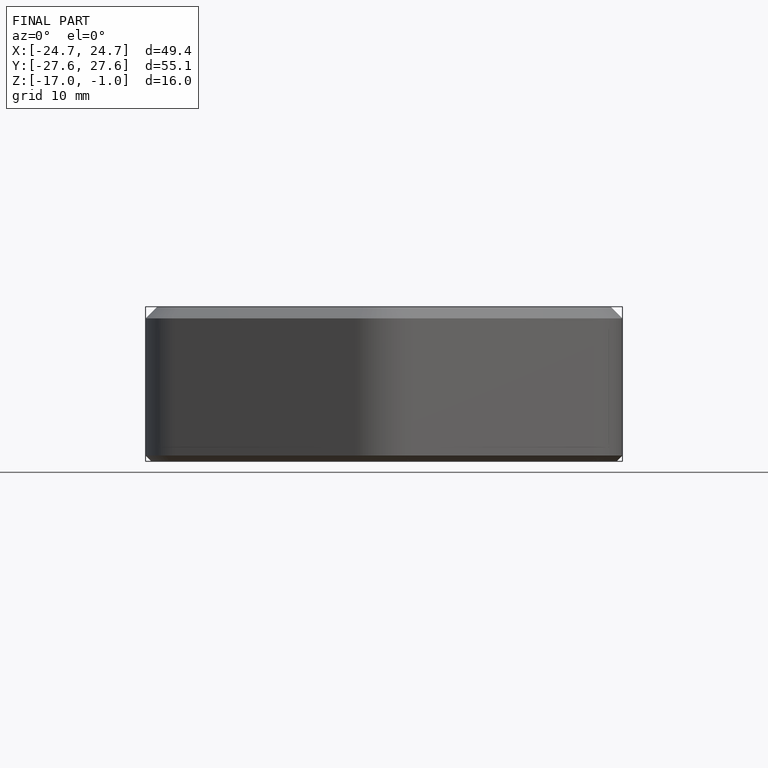
[diagram: finished part — front view with bounding-box wireframe]
